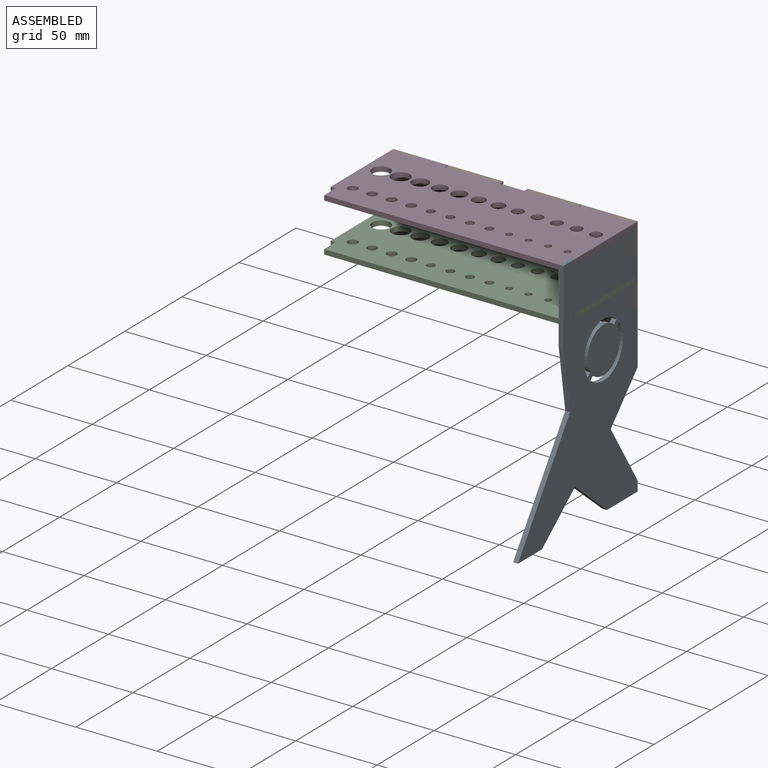
[diagram: assembled view]
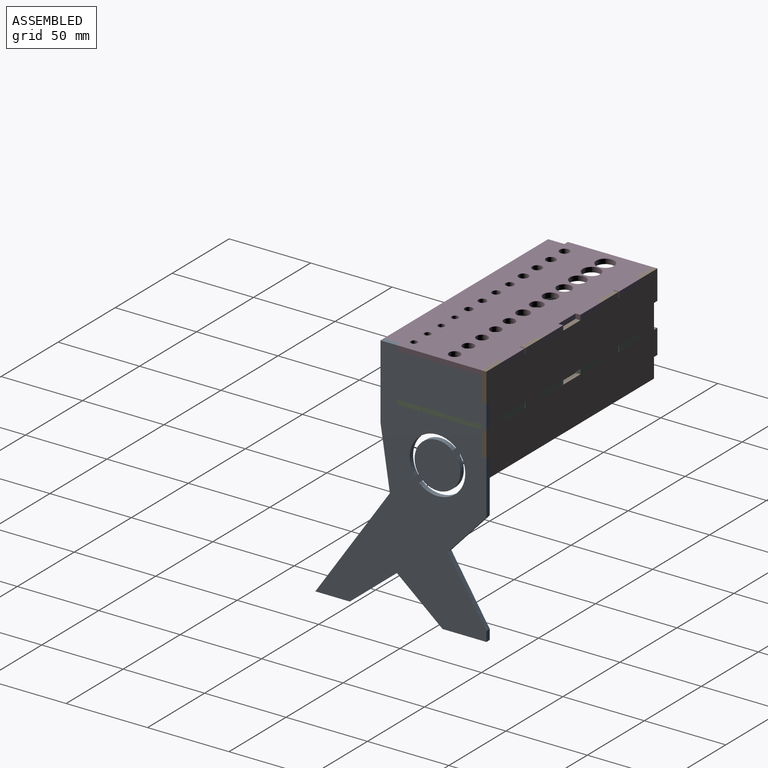
[diagram: assembled view, second angle]
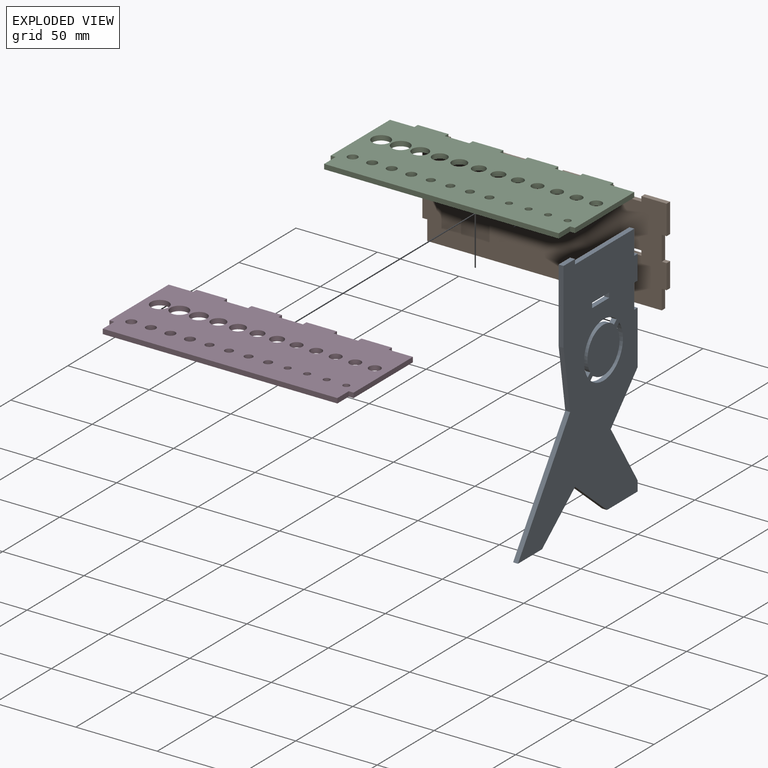
[diagram: exploded view]
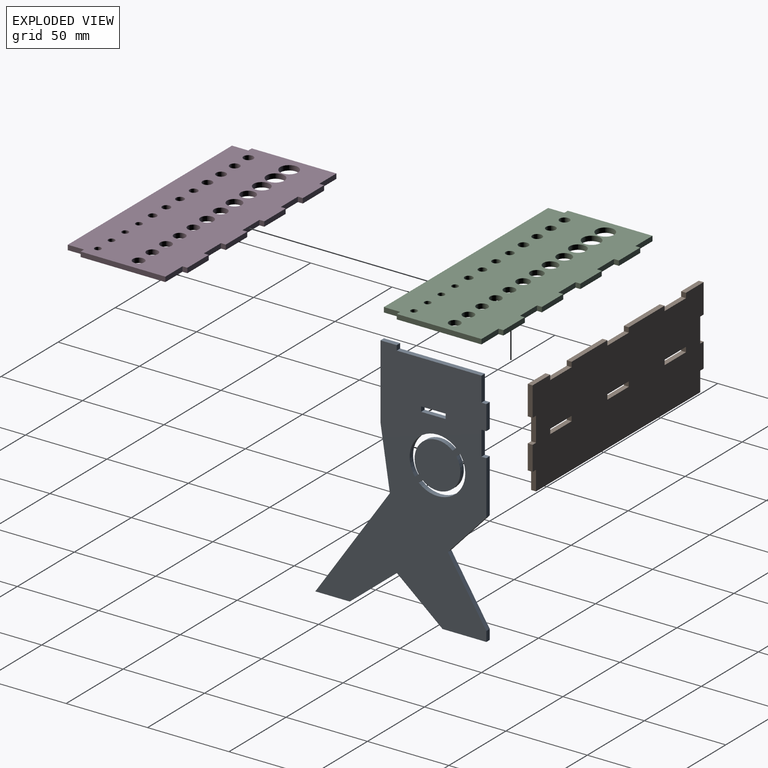
[diagram: exploded view, second angle]
ASSEMBLY  parts=4 mates=8
PART A: 34 faces, bbox 3x105x150 mm
  f0: plane 45.51x3mm, normal (0,-1,0), area 136.5mm2, adj f3,f4,f6,f33
  f1: plane 26.87x3mm, normal (0,0,-1), area 80.6mm2, adj f3,f4,f8,f30
  f2: plane 32.9x3mm, normal (0,1,0), area 98.7mm2, adj f3,f4,f12,f28
  f3: plane 150x105mm, normal (1,0,0), area 8794.9mm2, adj f0,f1,f2,f5,f6,f7,f8,f9
  f4: plane 150x105mm, normal (-1,0,0), area 8794.9mm2, adj f0,f1,f2,f5,f6,f7,f8,f9
  f5: plane 15x3mm, normal (0,1,0), area 45mm2, adj f3,f4,f11,f15
  f6: plane 10x3mm, normal (0,0,1), area 30mm2, adj f0,f3,f4,f9
  f7: plane 21.16x3mm, normal (0,0,-1), area 63.5mm2, adj f3,f4,f31,f32
  f8: plane 6.09x3mm, normal (0,1,0), area 18.3mm2, adj f1,f3,f4,f29
  f9: plane 3x3mm, normal (0,1,0), area 9mm2, adj f3,f4,f6,f10
  f10: plane 52x3mm, normal (0,0,1), area 156mm2, adj f3,f4,f9,f14
  f11: plane 3x3mm, normal (0,0,-1), area 9mm2, adj f3,f4,f5,f13
  f12: plane 3x3mm, normal (0,0,1), area 9mm2, adj f2,f3,f4,f13
  f13: plane 15x3mm, normal (0,1,0), area 45mm2, adj f3,f4,f11,f12
  f14: plane 15x3mm, normal (0,1,0), area 45mm2, adj f3,f4,f10,f15
  f15: plane 3x3mm, normal (0,0,1), area 9mm2, adj f3,f4,f5,f14
  f16: cylinder r=14.08mm len=23.31mm, axis (1,0,0), area 122.2mm2, adj f3,f4,f17,f19
  f17: plane 3x2.25mm, normal (0,0.67,-0.74), area 9.1mm2, adj f3,f4,f16,f18
  f18: cylinder r=17.08mm len=28.56mm, axis (1,0,0), area 150.5mm2, adj f3,f4,f17,f19
  f19: plane 3x2.25mm, normal (0,0.67,-0.74), area 9.1mm2, adj f3,f4,f16,f18
  f20: cylinder r=17.08mm len=28.56mm, axis (1,0,0), area 150.5mm2, adj f3,f4,f21,f22
  f21: plane 3x2.25mm, normal (0,-0.67,0.74), area 9.1mm2, adj f3,f4,f20,f23
  f22: plane 3x2.25mm, normal (0,-0.67,0.74), area 9.1mm2, adj f3,f4,f20,f23
  f23: cylinder r=14.08mm len=23.31mm, axis (1,0,0), area 122.2mm2, adj f3,f4,f21,f22
  f24: plane 15x3mm, normal (0,0,-1), area 45mm2, adj f3,f4,f25,f26
  f25: plane 3x3mm, normal (0,-1,0), area 9mm2, adj f3,f4,f24,f27
  f26: plane 3x3mm, normal (0,1,0), area 9mm2, adj f3,f4,f24,f27
  f27: plane 15x3mm, normal (0,0,1), area 45mm2, adj f3,f4,f25,f26
  f28: plane 25.46x23.63mm, normal (0,0.73,-0.68), area 104.2mm2, adj f2,f3,f4,f29
  f29: plane 37.55x23.63mm, normal (0,0.85,0.53), area 133.1mm2, adj f3,f4,f8,f28
  f30: plane 28.05x23.57mm, normal (0,-0.64,-0.77), area 109.9mm2, adj f1,f3,f4,f31
  f31: plane 28.92x23.57mm, normal (0,0.63,-0.78), area 111.9mm2, adj f3,f4,f7,f30
  f32: plane 66.73x45.76mm, normal (0,-0.82,0.57), area 242.7mm2, adj f3,f4,f7,f33
  f33: plane 37.76x5.76mm, normal (0,-0.99,-0.15), area 114.6mm2, adj f0,f3,f4,f32
PART B: 42 faces, bbox 150x3x60 mm
  f0: plane 15x3mm, normal (-1,0,0), area 45mm2, adj f3,f4,f32,f41
  f1: plane 144x3mm, normal (0,0,-1), area 432mm2, adj f3,f4,f39,f40
  f2: plane 15x3mm, normal (1,0,0), area 45mm2, adj f3,f4,f37,f38
  f3: plane 150x60mm, normal (0,-1,0), area 8500.5mm2, adj f0,f1,f2,f5,f6,f7,f8,f9
  f4: plane 150x60mm, normal (0,1,0), area 8500.5mm2, adj f0,f1,f2,f5,f6,f7,f8,f9
  f5: plane 15.5x3mm, normal (0,0,1), area 46.5mm2, adj f3,f4,f9,f30
  f6: plane 31.38x3mm, normal (0,0,1), area 94.1mm2, adj f3,f4,f23,f29
  f7: plane 31.38x3mm, normal (0,0,1), area 94.1mm2, adj f3,f4,f12,f22
  f8: plane 18x3mm, normal (-1,0,0), area 54mm2, adj f3,f4,f10,f34
  f9: plane 18x3mm, normal (1,0,0), area 54mm2, adj f3,f4,f5,f35
  f10: plane 15.5x3mm, normal (0,0,1), area 46.5mm2, adj f3,f4,f8,f11
  f11: plane 3x3mm, normal (1,0,0), area 9mm2, adj f3,f4,f10,f13
  f12: plane 3x3mm, normal (-1,0,0), area 9mm2, adj f3,f4,f7,f13
  f13: plane 18.75x3mm, normal (0,0,1), area 56.2mm2, adj f3,f4,f11,f12
  f14: plane 3x3mm, normal (1,0,0), area 9mm2, adj f3,f4,f15,f16
  f15: plane 18.75x3mm, normal (0,0,-1), area 56.2mm2, adj f3,f4,f14,f17
  f16: plane 18.75x3mm, normal (0,0,1), area 56.2mm2, adj f3,f4,f14,f17
  f17: plane 3x3mm, normal (-1,0,0), area 9mm2, adj f3,f4,f15,f16
  f18: plane 3x3mm, normal (1,0,0), area 9mm2, adj f3,f4,f19,f20
  f19: plane 18.75x3mm, normal (0,0,-1), area 56.2mm2, adj f3,f4,f18,f21
  f20: plane 18.75x3mm, normal (0,0,1), area 56.2mm2, adj f3,f4,f18,f21
  f21: plane 3x3mm, normal (-1,0,0), area 9mm2, adj f3,f4,f19,f20
  f22: plane 3x3mm, normal (1,0,0), area 9mm2, adj f3,f4,f7,f24
  f23: plane 3x3mm, normal (-1,0,0), area 9mm2, adj f3,f4,f6,f24
  f24: plane 18.75x3mm, normal (0,0,1), area 56.3mm2, adj f3,f4,f22,f23
  f25: plane 3x3mm, normal (1,0,0), area 9mm2, adj f3,f4,f26,f27
  f26: plane 18.75x3mm, normal (0,0,-1), area 56.3mm2, adj f3,f4,f25,f28
  f27: plane 18.75x3mm, normal (0,0,1), area 56.3mm2, adj f3,f4,f25,f28
  f28: plane 3x3mm, normal (-1,0,0), area 9mm2, adj f3,f4,f26,f27
  f29: plane 3x3mm, normal (1,0,0), area 9mm2, adj f3,f4,f6,f31
  f30: plane 3x3mm, normal (-1,0,0), area 9mm2, adj f3,f4,f5,f31
  f31: plane 18.75x3mm, normal (0,0,1), area 56.2mm2, adj f3,f4,f29,f30
  f32: plane 3x3mm, normal (0,0,1), area 9mm2, adj f0,f3,f4,f33
  f33: plane 15x3mm, normal (-1,0,0), area 45mm2, adj f3,f4,f32,f34
  f34: plane 3x3mm, normal (0,0,-1), area 9mm2, adj f3,f4,f8,f33
  f35: plane 3x3mm, normal (0,0,-1), area 9mm2, adj f3,f4,f9,f36
  f36: plane 15x3mm, normal (1,0,0), area 45mm2, adj f3,f4,f35,f37
  f37: plane 3x3mm, normal (0,0,1), area 9mm2, adj f2,f3,f4,f36
  f38: plane 3x3mm, normal (0,0,-1), area 9mm2, adj f2,f3,f4,f39
  f39: plane 12x3mm, normal (1,0,0), area 36mm2, adj f1,f3,f4,f38
  f40: plane 12x3mm, normal (-1,0,0), area 36mm2, adj f1,f3,f4,f41
  f41: plane 3x3mm, normal (0,0,-1), area 9mm2, adj f0,f3,f4,f40
PART C: 50 faces, bbox 150x65x3 mm
  f0: plane 150x65mm, normal (0,0,1), area 8534.3mm2, adj f1,f2,f3,f4,f5,f6,f7,f9
  f1: plane 52x3mm, normal (1,0,0), area 156mm2, adj f0,f8,f43,f47
  f2: plane 52x3mm, normal (-1,0,0), area 156mm2, adj f0,f8,f45,f49
  f3: plane 144x3mm, normal (0,-1,0), area 432mm2, adj f0,f8,f46,f48
  f4: plane 18.75x3mm, normal (0,1,0), area 56.2mm2, adj f0,f8,f39,f44
  f5: plane 18.75x3mm, normal (0,1,0), area 56.2mm2, adj f0,f8,f36,f40
  f6: plane 18.75x3mm, normal (0,1,0), area 56.2mm2, adj f0,f8,f33,f37
  f7: plane 18.75x3mm, normal (0,1,0), area 56.2mm2, adj f0,f8,f34,f42
  f8: plane 150x65mm, normal (0,0,-1), area 8534.3mm2, adj f1,f2,f3,f4,f5,f6,f7,f9
  f9: cylinder r=5.5mm len=11mm, axis (0,0,1), area 103.7mm2, adj f0,f8
  f10: cylinder r=2mm len=4mm, axis (0,0,1), area 37.7mm2, adj f0,f8
  f11: cylinder r=2mm len=4mm, axis (0,0,1), area 37.7mm2, adj f0,f8
  f12: cylinder r=2mm len=4mm, axis (0,0,1), area 37.7mm2, adj f0,f8
  f13: cylinder r=2mm len=4mm, axis (0,0,1), area 37.7mm2, adj f0,f8
  f14: cylinder r=2.5mm len=5mm, axis (0,0,1), area 47.1mm2, adj f0,f8
  f15: cylinder r=2.5mm len=5mm, axis (0,0,1), area 47.1mm2, adj f0,f8
  f16: cylinder r=2.5mm len=5mm, axis (0,0,1), area 47.1mm2, adj f0,f8
  f17: cylinder r=5.5mm len=11mm, axis (0,0,1), area 103.7mm2, adj f0,f8
  f18: cylinder r=5mm len=10mm, axis (0,0,1), area 94.2mm2, adj f0,f8
  f19: cylinder r=4.5mm len=9mm, axis (0,0,1), area 84.8mm2, adj f0,f8
  f20: cylinder r=4.5mm len=9mm, axis (0,0,1), area 84.8mm2, adj f0,f8
  f21: cylinder r=4mm len=8mm, axis (0,0,1), area 75.4mm2, adj f0,f8
  f22: cylinder r=4mm len=8mm, axis (0,0,1), area 75.4mm2, adj f0,f8
  f23: cylinder r=3.5mm len=7mm, axis (0,0,1), area 66mm2, adj f0,f8
  f24: cylinder r=3.5mm len=7mm, axis (0,0,1), area 66mm2, adj f0,f8
  f25: cylinder r=2.5mm len=5mm, axis (0,0,1), area 47.1mm2, adj f0,f8
  f26: cylinder r=3mm len=6mm, axis (0,0,1), area 56.5mm2, adj f0,f8
  f27: cylinder r=3mm len=6mm, axis (0,0,1), area 56.5mm2, adj f0,f8
  f28: cylinder r=3mm len=6mm, axis (0,0,1), area 56.5mm2, adj f0,f8
  f29: cylinder r=3.5mm len=7mm, axis (0,0,1), area 66mm2, adj f0,f8
  f30: cylinder r=3.5mm len=7mm, axis (0,0,1), area 66mm2, adj f0,f8
  f31: cylinder r=3.5mm len=7mm, axis (0,0,1), area 66mm2, adj f0,f8
  f32: cylinder r=3mm len=6mm, axis (0,0,1), area 56.5mm2, adj f0,f8
  f33: plane 3x3mm, normal (1,0,0), area 9mm2, adj f0,f6,f8,f35
  f34: plane 3x3mm, normal (-1,0,0), area 9mm2, adj f0,f7,f8,f35
  f35: plane 15x3mm, normal (0,1,0), area 45mm2, adj f0,f8,f33,f34
  f36: plane 3x3mm, normal (1,0,0), area 9mm2, adj f0,f5,f8,f38
  f37: plane 3x3mm, normal (-1,0,0), area 9mm2, adj f0,f6,f8,f38
  f38: plane 15x3mm, normal (0,1,0), area 45mm2, adj f0,f8,f36,f37
  f39: plane 3x3mm, normal (1,0,0), area 9mm2, adj f0,f4,f8,f41
  f40: plane 3x3mm, normal (-1,0,0), area 9mm2, adj f0,f5,f8,f41
  f41: plane 15x3mm, normal (0,1,0), area 45mm2, adj f0,f8,f39,f40
  f42: plane 3x3mm, normal (1,0,0), area 9mm2, adj f0,f7,f8,f43
  f43: plane 15x3mm, normal (0,1,0), area 45mm2, adj f0,f1,f8,f42
  f44: plane 3x3mm, normal (-1,0,0), area 9mm2, adj f0,f4,f8,f45
  f45: plane 15x3mm, normal (0,1,0), area 45mm2, adj f0,f2,f8,f44
  f46: plane 10x3mm, normal (1,0,0), area 30mm2, adj f0,f3,f8,f47
  f47: plane 3x3mm, normal (0,-1,0), area 9mm2, adj f0,f1,f8,f46
  f48: plane 10x3mm, normal (-1,0,0), area 30mm2, adj f0,f3,f8,f49
  f49: plane 3x3mm, normal (0,-1,0), area 9mm2, adj f0,f2,f8,f48
PART D: same geometry as C
PLACE A t=(72.05,-46.96,-128.47)mm
PLACE B t=(0.05,-14.46,-83.47)mm
PLACE C t=(0.05,-46.96,-86.45)mm
PLACE D t=(0.05,-46.96,-56.47)mm
MATE planar C.f14 <-> A.f24  axis (0,0,1) through (19.05,-64.46,-83.45)mm
MATE planar D.f3 <-> A.f0  axis (0,-1,0) through (0.05,-79.46,-54.97)mm
MATE planar C.f1 <-> A.f3  axis (1,0,0) through (75.05,-43.46,-84.95)mm
MATE planar A.f6 <-> D.f0  axis (0,0,1) through (73.55,-74.46,-53.47)mm
MATE planar B.f9 <-> D.f1  axis (1,0,0) through (75.05,-15.96,-62.47)mm
MATE planar C.f4 <-> B.f4  axis (0,1,0) through (-50.57,-14.46,-84.95)mm
MATE planar D.f1 <-> A.f3  axis (1,0,0) through (75.05,-43.46,-54.97)mm
MATE planar D.f1 <-> B.f9  axis (1,0,0) through (75.05,-43.46,-54.97)mm
